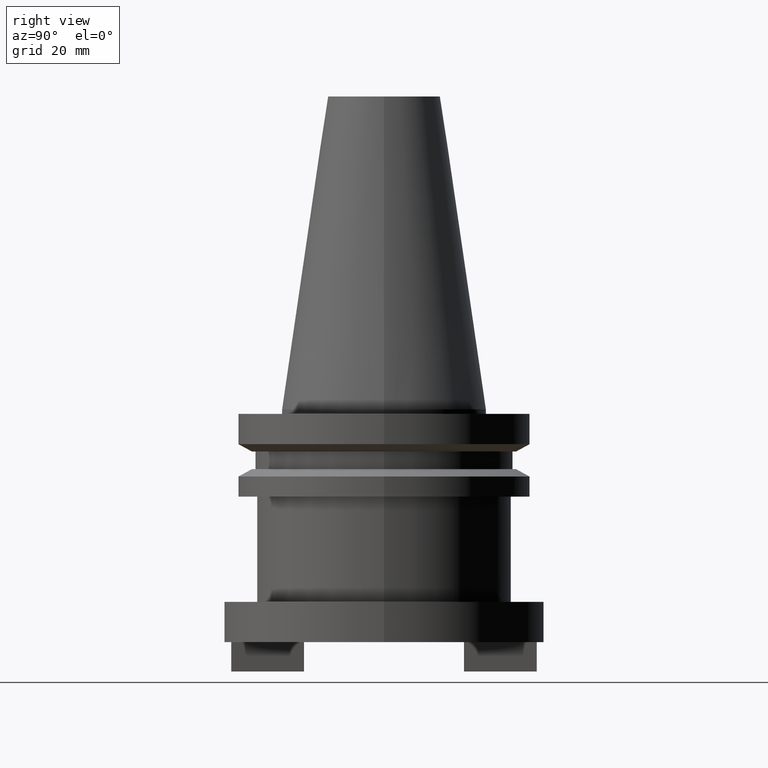
[diagram: clean part render]
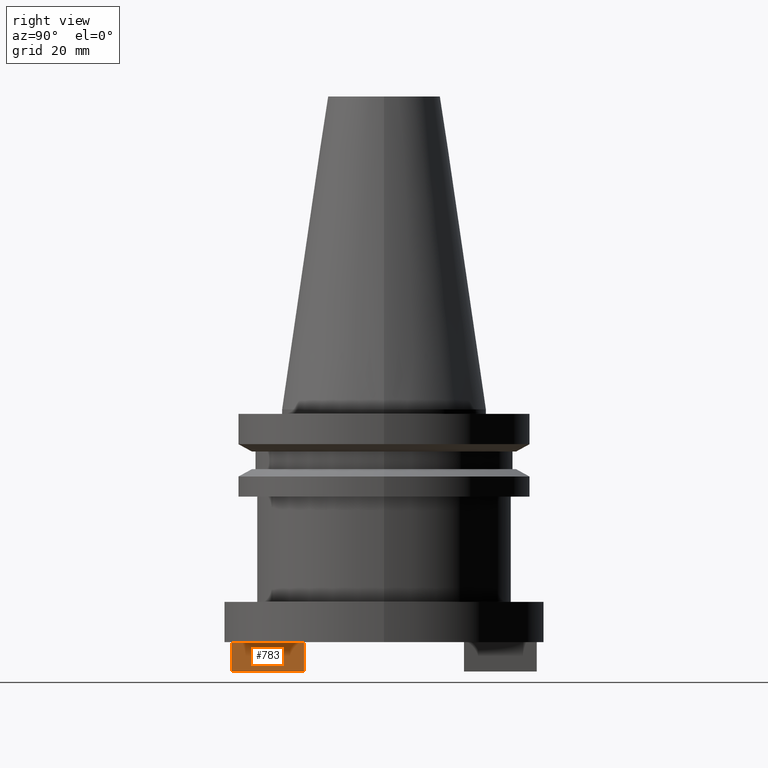
[diagram: same view with one face highlighted and labeled with its STEP entity id]
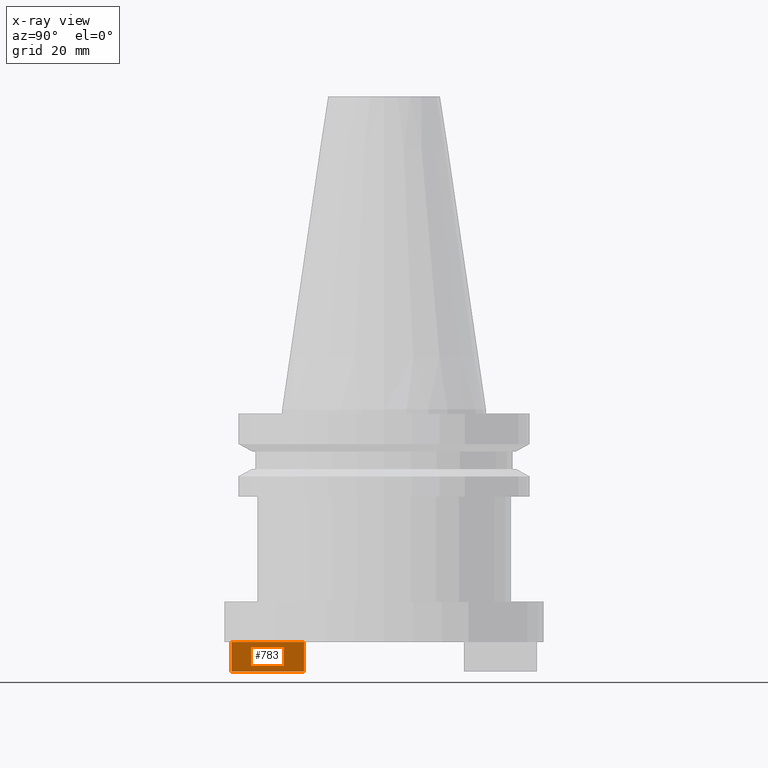
[diagram: x-ray of the same camera — body ghosted, the highlighted face saturated]
A machine part, right view. The second image highlights one B-rep face of the part: STEP entity #783.
The next image is the same camera in x-ray: the body ghosted, the highlighted face saturated — about 0% of this face is hidden behind the body in this view.
In plain terms, the highlighted planar face has unit normal (-1, 0, -0).
Its self-contained STEP definition (entity closure, byte-faithful):
#12 = VERTEX_POINT ( 'NONE', #476 ) ;
#44 = ORIENTED_EDGE ( 'NONE', *, *, #166, .T. ) ;
#90 = EDGE_CURVE ( 'NONE', #464, #552, #262, .T. ) ;
#113 = LINE ( 'NONE', #614, #834 ) ;
#115 = VECTOR ( 'NONE', #859, 1000.000000000000000 ) ;
#125 = CARTESIAN_POINT ( 'NONE',  ( 7.935000000000001386, -17.46499999999999986, -50.79999999999999716 ) ) ;
#166 = EDGE_CURVE ( 'NONE', #552, #1067, #351, .T. ) ;
#262 = LINE ( 'NONE', #502, #577 ) ;
#268 = DIRECTION ( 'NONE',  ( 0.000000000000000000, -1.000000000000000000, 0.000000000000000000 ) ) ;
#293 = AXIS2_PLACEMENT_3D ( 'NONE', #836, #741, #1037 ) ;
#336 = PLANE ( 'NONE',  #293 ) ;
#351 = LINE ( 'NONE', #378, #115 ) ;
#378 = CARTESIAN_POINT ( 'NONE',  ( 7.935000000000001386, -17.46499999999999986, -50.79999999999999716 ) ) ;
#421 = EDGE_LOOP ( 'NONE', ( #44, #1026, #510, #516 ) ) ;
#464 = VERTEX_POINT ( 'NONE', #571 ) ;
#476 = CARTESIAN_POINT ( 'NONE',  ( 7.935000000000001386, -33.33499999999999375, -57.20000000000000284 ) ) ;
#485 = EDGE_CURVE ( 'NONE', #464, #12, #113, .T. ) ;
#488 = DIRECTION ( 'NONE',  ( -0.000000000000000000, -0.000000000000000000, 1.000000000000000000 ) ) ;
#502 = CARTESIAN_POINT ( 'NONE',  ( 7.935000000000001386, -17.46499999999999986, -57.20000000000000284 ) ) ;
#510 = ORIENTED_EDGE ( 'NONE', *, *, #485, .F. ) ;
#516 = ORIENTED_EDGE ( 'NONE', *, *, #90, .T. ) ;
#552 = VERTEX_POINT ( 'NONE', #125 ) ;
#571 = CARTESIAN_POINT ( 'NONE',  ( 7.935000000000001386, -17.46499999999999986, -57.20000000000000284 ) ) ;
#576 = CARTESIAN_POINT ( 'NONE',  ( 7.935000000000001386, -33.33499999999999375, -50.79999999999999716 ) ) ;
#577 = VECTOR ( 'NONE', #930, 1000.000000000000000 ) ;
#614 = CARTESIAN_POINT ( 'NONE',  ( 7.935000000000001386, -17.46499999999999986, -57.20000000000000284 ) ) ;
#663 = FACE_OUTER_BOUND ( 'NONE', #421, .T. ) ;
#732 = EDGE_CURVE ( 'NONE', #12, #1067, #989, .T. ) ;
#741 = DIRECTION ( 'NONE',  ( -1.000000000000000000, 0.000000000000000000, -0.000000000000000000 ) ) ;
#783 = ADVANCED_FACE ( 'NONE', ( #663 ), #336, .F. ) ;
#834 = VECTOR ( 'NONE', #268, 1000.000000000000000 ) ;
#836 = CARTESIAN_POINT ( 'NONE',  ( 7.935000000000001386, -17.46499999999999986, -57.20000000000000284 ) ) ;
#859 = DIRECTION ( 'NONE',  ( 0.000000000000000000, -1.000000000000000000, 0.000000000000000000 ) ) ;
#911 = CARTESIAN_POINT ( 'NONE',  ( 7.935000000000001386, -33.33499999999999375, -57.20000000000000284 ) ) ;
#930 = DIRECTION ( 'NONE',  ( -0.000000000000000000, -0.000000000000000000, 1.000000000000000000 ) ) ;
#989 = LINE ( 'NONE', #911, #1052 ) ;
#1026 = ORIENTED_EDGE ( 'NONE', *, *, #732, .F. ) ;
#1037 = DIRECTION ( 'NONE',  ( -0.000000000000000000, 0.000000000000000000, 1.000000000000000000 ) ) ;
#1052 = VECTOR ( 'NONE', #488, 1000.000000000000000 ) ;
#1067 = VERTEX_POINT ( 'NONE', #576 ) ;